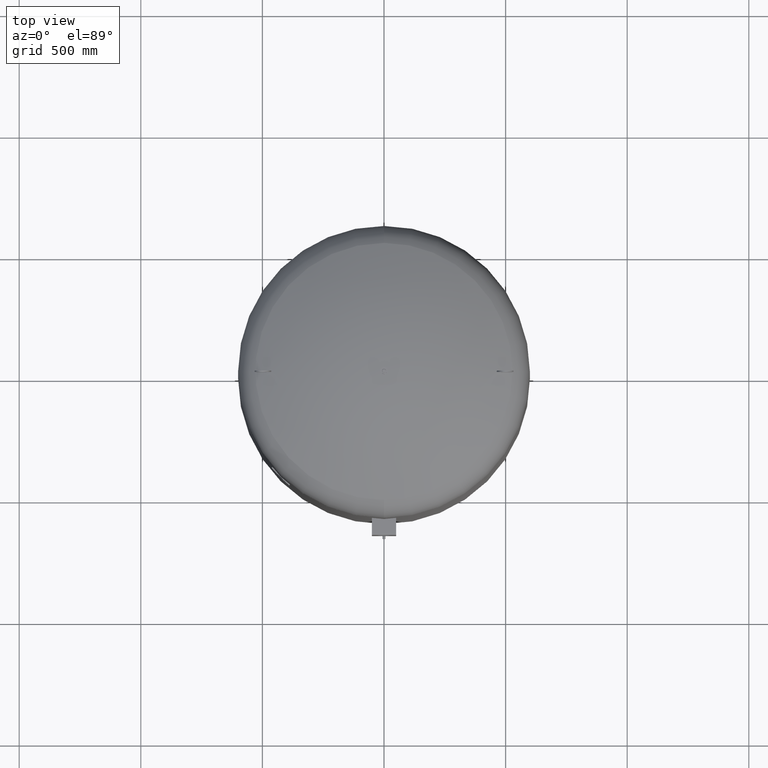
[diagram: clean part render]
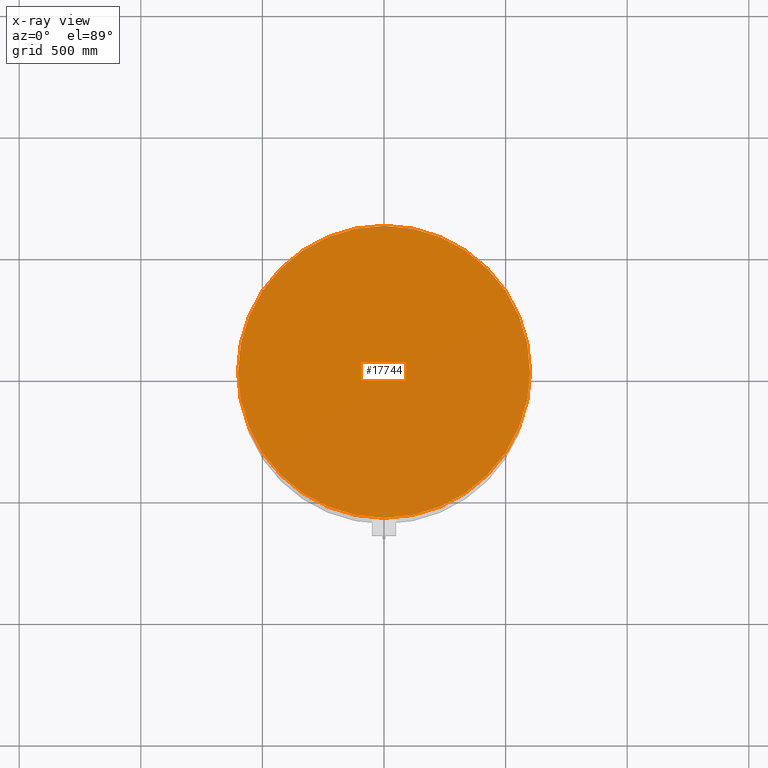
[diagram: x-ray — body ghosted, one internal face saturated and labeled with its STEP entity id]
A machine part, top view, then the same camera in x-ray: the body is ghosted and one INTERNAL B-rep face — a face not visible from any outside direction — is saturated and labeled: STEP entity #17744.
In plain terms, the highlighted planar face has unit normal (0, 0, -1).
Its self-contained STEP definition (entity closure, byte-faithful):
#17075=CARTESIAN_POINT('',(600.000000000000110,-4.684274E-014,2164.0));
#17076=VERTEX_POINT('',#17075);
#17085=CARTESIAN_POINT('',(-599.999999999999890,2.663364E-014,2164.0));
#17086=VERTEX_POINT('',#17085);
#17087=CARTESIAN_POINT('',(7.134050E-015,-4.684274E-014,2164.0));
#17088=DIRECTION('',(0.0,0.0,-1.0));
#17089=DIRECTION('',(1.0,0.0,0.0));
#17090=AXIS2_PLACEMENT_3D('',#17087,#17088,#17089);
#17091=CIRCLE('',#17090,600.0);
#17092=EDGE_CURVE('',#17086,#17076,#17091,.T.);
#17725=CARTESIAN_POINT('',(7.134050E-015,-4.684274E-014,2164.0));
#17726=DIRECTION('',(0.0,0.0,-1.0));
#17727=DIRECTION('',(1.0,0.0,0.0));
#17728=AXIS2_PLACEMENT_3D('',#17725,#17726,#17727);
#17729=CIRCLE('',#17728,600.0);
#17730=EDGE_CURVE('',#17076,#17086,#17729,.T.);
#17735=CARTESIAN_POINT('',(300.0,-4.684274E-014,2164.0));
#17736=DIRECTION('',(0.0,0.0,-1.0));
#17737=DIRECTION('',(0.0,-1.0,0.0));
#17738=AXIS2_PLACEMENT_3D('',#17735,#17736,#17737);
#17739=PLANE('',#17738);
#17740=ORIENTED_EDGE('',*,*,#17730,.T.);
#17741=ORIENTED_EDGE('',*,*,#17092,.T.);
#17742=EDGE_LOOP('',(#17740,#17741));
#17743=FACE_OUTER_BOUND('',#17742,.T.);
#17744=ADVANCED_FACE('',(#17743),#17739,.T.);